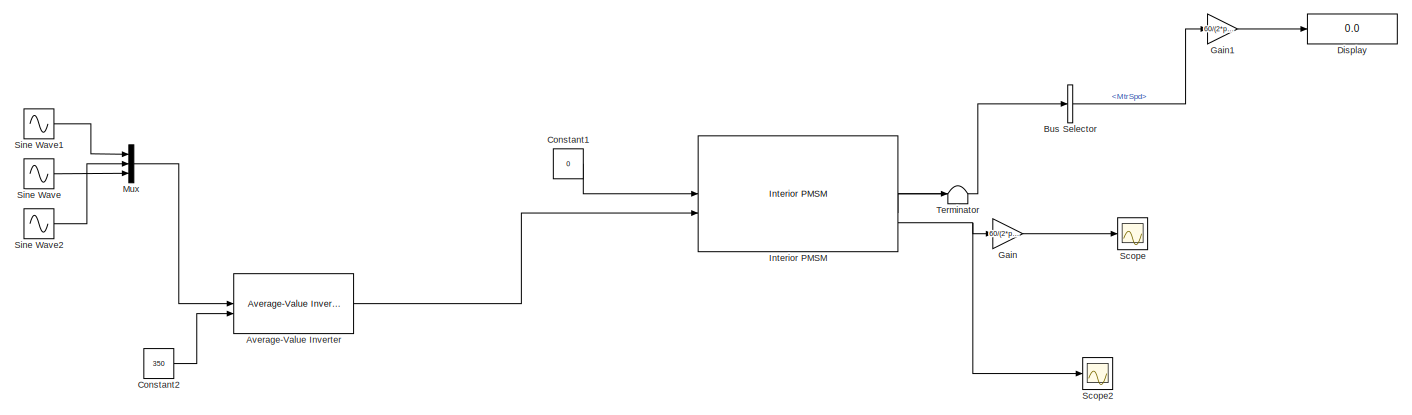
[diagram: root canvas - part 1/2, most of the canvas]
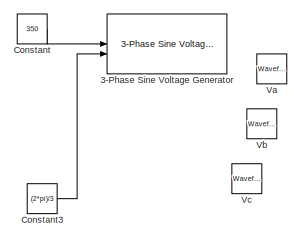
[diagram: root canvas - part 2/2, middle left region]
MODEL slx_ae966813d948
KIND model
CONFIG AbsTol = auto
CONFIG EnableMultiTasking = off
CONFIG FixedStep = auto
CONFIG MaxStep = auto
CONFIG MinStep = auto
CONFIG RelTol = 1e-3
CONFIG SampleTimeConstraint = Unconstrained
CONFIG SolverName = VariableStepAuto
CONFIG StartTime = 0.0
CONFIG StopTime = 100
BLOCK [Reference] 3-Phase Sine Voltage Generator  REF=mcbcontrolslib/3-Phase Sine Voltage Generator
  LibrarySourceBlock = mcblib/Controls/Math Transforms/3-Phase Sine Voltage Generator
  SourceBlock = mcbcontrolslib/3-Phase Sine Voltage Generator
  SourceType = 3-Phase Sine Voltage Generator
BLOCK [Reference] Average-Value Inverter  REF=mcbplantlib/Average-Value Inverter
  LibrarySourceBlock = mcblib/Electrical Systems/Inverters/Average-Value Inverter
  SourceBlock = mcbplantlib/Average-Value Inverter
  SourceType = Average Value Inverter
BLOCK [BusSelector] Bus Selector
  OutputSignals = MtrSpd
BLOCK [Constant] Constant
  SampleTime = 0.1
  Value = 350
BLOCK [Constant] Constant1
  SampleTime = 0.1
  Value = 0
BLOCK [Constant] Constant2
  SampleTime = 0.1
  Value = 350
BLOCK [Constant] Constant3
  SampleTime = 0.1
  Value = (2*pi)/3
BLOCK [Display] Display
  Decimation = 1
BLOCK [Gain] Gain
  Gain = 60/(2*pi)
BLOCK [Gain] Gain1
  Gain = 60/(2*pi)
BLOCK [Reference] Interior PMSM  REF=autolibpmsminterior/Interior PMSM
  LibrarySourceBlock = autolibemachines/Interior PMSM
  SourceBlock = autolibpmsminterior/Interior PMSM
  SourceType = Interior PMSM
BLOCK [Mux] Mux
  DisplayOption = bar
  Inputs = 3
BLOCK [Scope] Scope
  ActiveDisplayYMaximum = 23405.736980520905
  ActiveDisplayYMinimum = -21100.007629923279
  Floating = off
  GraphicalSettings = {"Style":{"BackgroundColor":[0.12941176470588237,0.12941176470588237,0.12941176470588237],"AxesColor":[0.07058823529411765,0.07058823529411765,0.07058823529411765],"LabelsColor":[0.8509803921568627,0.8509803921568627,0.8509803921568627],"PreserveColors":false,"Visible":[true],"LineStyle":["-"],"LineWidth":[1.5],"BarWidth":[0.9],"LineColor":["auto"],"LineFaceAlpha":[1],"LineEdgeAlpha":[1],"Marker":...<+1989ch>
  MultipleDisplayCache = [{"MaxYLimMag":522.59047436998742,"MaxYLimReal":23405.736980520905,"MinYLimMag":0,"MinYLimReal":-21100.007629923279,"PlotAsMagnitudePhase":false,"ShowGrid":true,"ShowLegend":false,"Title":"%<SignalLabel>","YLabel":""}]
  NumInputPorts = 1
  ScopeFrameLocation = window
  WasSavedAsWebScope = on
  WindowPosition = [560.000000,315.000000,560.000000,420.000000,]
BLOCK [Scope] Scope2
  ActiveDisplayYMaximum = 4589.046975035516
  ActiveDisplayYMinimum = -4904.4126380433927
  DataLoggingVariableName = ScopeData2
  Floating = off
  GraphicalSettings = {"Style":{"BackgroundColor":[0.12941176470588237,0.12941176470588237,0.12941176470588237],"AxesColor":[0.07058823529411765,0.07058823529411765,0.07058823529411765],"LabelsColor":[0.8509803921568627,0.8509803921568627,0.8509803921568627],"PreserveColors":false,"Visible":[true],"LineStyle":["-"],"LineWidth":[1.5],"BarWidth":[0.9],"LineColor":["auto"],"LineFaceAlpha":[1],"LineEdgeAlpha":[1],"Marker":...<+2019ch>
  MultipleDisplayCache = [{"MaxYLimMag":0.00033606485324210833,"MaxYLimReal":4589.046975035516,"MinYLimMag":0,"MinYLimReal":-4904.4126380433927,"PlotAsMagnitudePhase":false,"ShowGrid":true,"ShowLegend":false,"Title":"%<SignalLabel>","YLabel":""}]
  NumInputPorts = 1
  ScopeFrameLocation = window
  WasSavedAsWebScope = on
  WindowPosition = [1.000000,70.000000,1680.000000,928.000000,]
BLOCK [Sin] Sine Wave
  Frequency = 60
  Phase = (2*pi)/3
  SampleTime = 0.1
BLOCK [Sin] Sine Wave1
  Frequency = 60
  SampleTime = 0.1
BLOCK [Sin] Sine Wave2
  Frequency = 60
  Phase = (4*pi)/3
  SampleTime = 0.1
BLOCK [Terminator] Terminator
BLOCK [Reference] Va  REF=simulink/Sources/Waveform
Generator
  SourceBlock = simulink/Sources/Waveform\nGenerator
  SourceType = WaveformGenerator
BLOCK [Reference] Vb  REF=simulink/Sources/Waveform
Generator
  SourceBlock = simulink/Sources/Waveform\nGenerator
  SourceType = WaveformGenerator
BLOCK [Reference] Vc  REF=simulink/Sources/Waveform
Generator
  SourceBlock = simulink/Sources/Waveform\nGenerator
  SourceType = WaveformGenerator
LINE Average-Value Inverter:1 -> Interior PMSM:2
LINE Bus Selector:1 -> Gain1:1
LINE Constant1:1 -> Interior PMSM:1
LINE Constant2:1 -> Average-Value Inverter:2
LINE Constant3:1 -> 3-Phase Sine Voltage Generator:2
LINE Constant:1 -> 3-Phase Sine Voltage Generator:1
LINE Gain1:1 -> Display:1
LINE Gain:1 -> Scope:1
LINE Interior PMSM:1 -> Bus Selector:1
LINE Interior PMSM:2 -> Terminator:1
NET Interior PMSM:3 -> Gain:1, Scope2:1
LINE Mux:1 -> Average-Value Inverter:1
LINE Sine Wave1:1 -> Mux:1
LINE Sine Wave2:1 -> Mux:2
LINE Sine Wave:1 -> Mux:3
note: NET lines group one-source signal fan-out (src -> all destinations, sorted); 1:1 wires keep LINE
